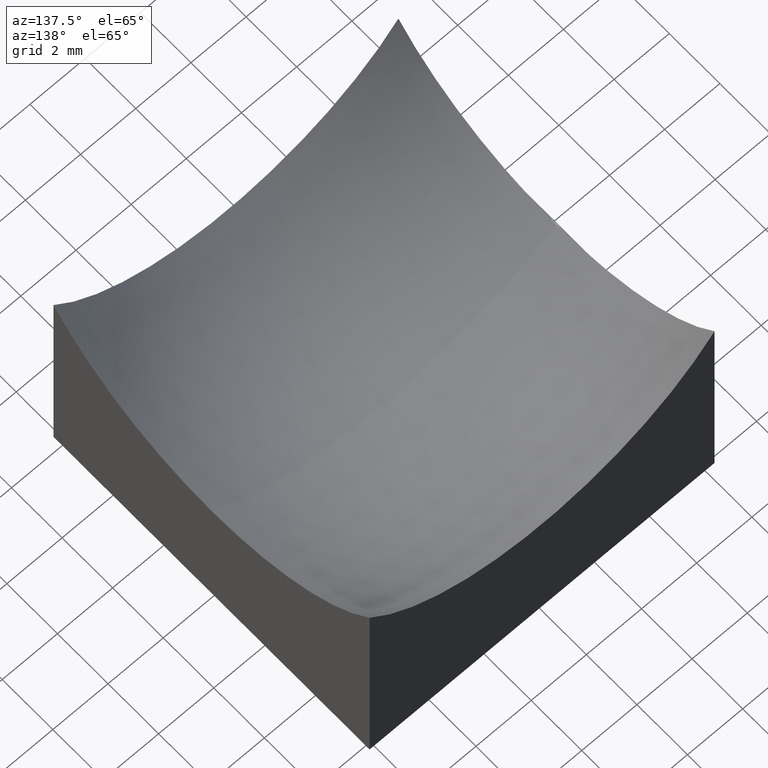
[diagram: clean part render]
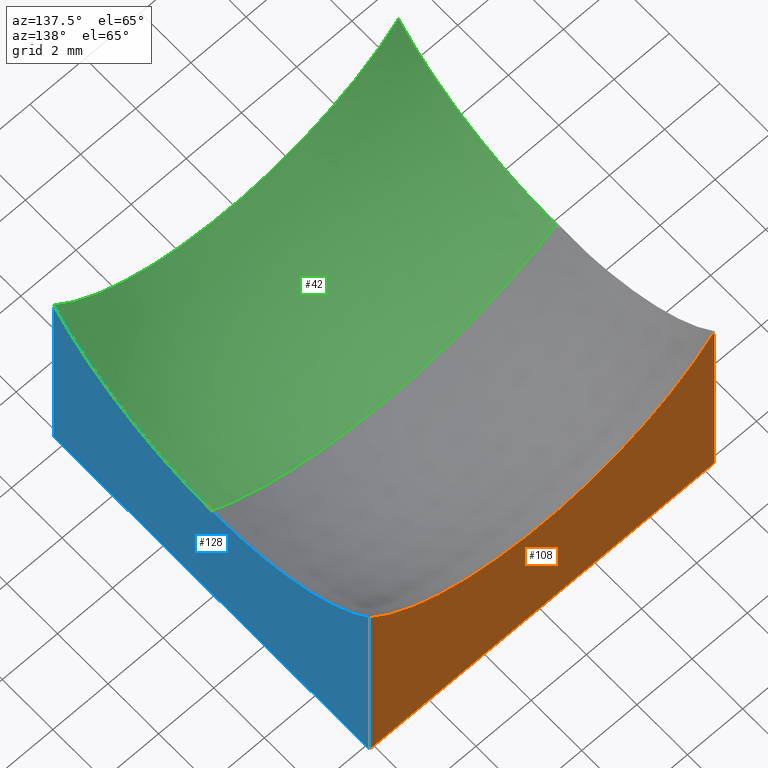
[diagram: same view with three faces highlighted in distinct colors, each labeled with its STEP entity id]
A machine part, auxiliary view with three faces highlighted in distinct colors.
Their STEP definitions:

[orange] entity #108 — the highlighted planar face has unit normal (0, 1, 0).
#5 = VERTEX_POINT ( 'NONE', #69 ) ;
#16 = LINE ( 'NONE', #56, #122 ) ;
#17 = DIRECTION ( 'NONE',  ( 0.0000000000000000000, 1.000000000000000000, 0.0000000000000000000 ) ) ;
#23 = VECTOR ( 'NONE', #41, 1000.000000000000000 ) ;
#31 = CARTESIAN_POINT ( 'NONE',  ( -6.250000000000000000, 6.250000000000000888, 10.00000000000000000 ) ) ;
#35 = CARTESIAN_POINT ( 'NONE',  ( -6.250000000000000000, 6.250000000000000888, 8.322928266532574781 ) ) ;
#36 = VERTEX_POINT ( 'NONE', #233 ) ;
#40 = DIRECTION ( 'NONE',  ( 1.000000000000000000, 0.0000000000000000000, 0.0000000000000000000 ) ) ;
#41 = DIRECTION ( 'NONE',  ( -0.0000000000000000000, -0.0000000000000000000, -1.000000000000000000 ) ) ;
#55 = ORIENTED_EDGE ( 'NONE', *, *, #217, .T. ) ;
#56 = CARTESIAN_POINT ( 'NONE',  ( -6.250000000000000000, 6.250000000000000888, 0.0000000000000000000 ) ) ;
#58 = EDGE_CURVE ( 'NONE', #5, #184, #16, .T. ) ;
#62 = FACE_OUTER_BOUND ( 'NONE', #101, .T. ) ;
#66 = CIRCLE ( 'NONE', #147, 7.806247497997999218 ) ;
#69 = CARTESIAN_POINT ( 'NONE',  ( -6.250000000000000000, 6.250000000000000888, 0.0000000000000000000 ) ) ;
#70 = CARTESIAN_POINT ( 'NONE',  ( 1.734723475976807094E-15, 6.250000000000000888, 13.00000000000000178 ) ) ;
#87 = VECTOR ( 'NONE', #89, 1000.000000000000000 ) ;
#89 = DIRECTION ( 'NONE',  ( -0.0000000000000000000, -0.0000000000000000000, -1.000000000000000000 ) ) ;
#92 = ORIENTED_EDGE ( 'NONE', *, *, #211, .F. ) ;
#101 = EDGE_LOOP ( 'NONE', ( #126, #55, #230, #92 ) ) ;
#106 = CARTESIAN_POINT ( 'NONE',  ( 6.250000000000000000, 6.250000000000000888, 0.0000000000000000000 ) ) ;
#108 = ADVANCED_FACE ( 'NONE', ( #62 ), #250, .T. ) ;
#122 = VECTOR ( 'NONE', #40, 1000.000000000000000 ) ;
#126 = ORIENTED_EDGE ( 'NONE', *, *, #196, .F. ) ;
#138 = DIRECTION ( 'NONE',  ( 0.0000000000000000000, -0.0000000000000000000, 1.000000000000000000 ) ) ;
#147 = AXIS2_PLACEMENT_3D ( 'NONE', #70, #168, #205 ) ;
#150 = CARTESIAN_POINT ( 'NONE',  ( -6.250000000000000000, 6.250000000000000888, 10.00000000000000000 ) ) ;
#152 = AXIS2_PLACEMENT_3D ( 'NONE', #150, #17, #138 ) ;
#155 = LINE ( 'NONE', #237, #23 ) ;
#168 = DIRECTION ( 'NONE',  ( 0.0000000000000000000, 1.000000000000000000, 0.0000000000000000000 ) ) ;
#184 = VERTEX_POINT ( 'NONE', #106 ) ;
#196 = EDGE_CURVE ( 'NONE', #36, #198, #66, .T. ) ;
#198 = VERTEX_POINT ( 'NONE', #35 ) ;
#205 = DIRECTION ( 'NONE',  ( 0.0000000000000000000, 0.0000000000000000000, 1.000000000000000000 ) ) ;
#211 = EDGE_CURVE ( 'NONE', #198, #5, #225, .T. ) ;
#217 = EDGE_CURVE ( 'NONE', #36, #184, #155, .T. ) ;
#225 = LINE ( 'NONE', #31, #87 ) ;
#230 = ORIENTED_EDGE ( 'NONE', *, *, #58, .F. ) ;
#233 = CARTESIAN_POINT ( 'NONE',  ( 6.250000000000000000, 6.250000000000000888, 8.322928266532569452 ) ) ;
#237 = CARTESIAN_POINT ( 'NONE',  ( 6.250000000000000000, 6.250000000000000888, 10.00000000000000000 ) ) ;
#250 = PLANE ( 'NONE',  #152 ) ;

[blue] entity #128 — the highlighted planar face has unit normal (1, 0, -0).
#6 = DIRECTION ( 'NONE',  ( 1.000000000000000000, 0.0000000000000000000, -0.0000000000000000000 ) ) ;
#8 = ORIENTED_EDGE ( 'NONE', *, *, #14, .T. ) ;
#13 = ORIENTED_EDGE ( 'NONE', *, *, #63, .F. ) ;
#14 = EDGE_CURVE ( 'NONE', #88, #109, #224, .T. ) ;
#15 = DIRECTION ( 'NONE',  ( -0.0000000000000000000, 0.0000000000000000000, -1.000000000000000000 ) ) ;
#23 = VECTOR ( 'NONE', #41, 1000.000000000000000 ) ;
#24 = ORIENTED_EDGE ( 'NONE', *, *, #68, .F. ) ;
#26 = AXIS2_PLACEMENT_3D ( 'NONE', #174, #212, #15 ) ;
#29 = CARTESIAN_POINT ( 'NONE',  ( 6.250000000000000000, 0.0000000000000000000, 13.00000000000000178 ) ) ;
#33 = ORIENTED_EDGE ( 'NONE', *, *, #208, .F. ) ;
#36 = VERTEX_POINT ( 'NONE', #233 ) ;
#37 = CARTESIAN_POINT ( 'NONE',  ( 6.250000000000000000, 0.0000000000000000000, 5.193752502001999893 ) ) ;
#38 = DIRECTION ( 'NONE',  ( 0.0000000000000000000, -1.000000000000000000, 0.0000000000000000000 ) ) ;
#39 = CARTESIAN_POINT ( 'NONE',  ( 6.250000000000000000, 6.250000000000000888, 0.0000000000000000000 ) ) ;
#41 = DIRECTION ( 'NONE',  ( -0.0000000000000000000, -0.0000000000000000000, -1.000000000000000000 ) ) ;
#57 = VECTOR ( 'NONE', #38, 1000.000000000000000 ) ;
#61 = DIRECTION ( 'NONE',  ( 1.000000000000000000, 0.0000000000000000000, -0.0000000000000000000 ) ) ;
#63 = EDGE_CURVE ( 'NONE', #184, #109, #213, .T. ) ;
#68 = EDGE_CURVE ( 'NONE', #204, #36, #81, .T. ) ;
#73 = CARTESIAN_POINT ( 'NONE',  ( 6.250000000000000000, -6.250000000000000888, 8.322928266532569452 ) ) ;
#77 = CARTESIAN_POINT ( 'NONE',  ( 6.250000000000000000, -6.250000000000000888, 0.0000000000000000000 ) ) ;
#81 = CIRCLE ( 'NONE', #188, 7.806247497998001883 ) ;
#88 = VERTEX_POINT ( 'NONE', #73 ) ;
#100 = AXIS2_PLACEMENT_3D ( 'NONE', #29, #6, #242 ) ;
#106 = CARTESIAN_POINT ( 'NONE',  ( 6.250000000000000000, 6.250000000000000888, 0.0000000000000000000 ) ) ;
#109 = VERTEX_POINT ( 'NONE', #77 ) ;
#128 = ADVANCED_FACE ( 'NONE', ( #248 ), #231, .T. ) ;
#155 = LINE ( 'NONE', #237, #23 ) ;
#157 = CIRCLE ( 'NONE', #100, 7.806247497998001883 ) ;
#167 = CARTESIAN_POINT ( 'NONE',  ( 6.250000000000000000, -6.250000000000000888, 10.00000000000000000 ) ) ;
#174 = CARTESIAN_POINT ( 'NONE',  ( 6.250000000000000000, 6.250000000000000888, 10.00000000000000000 ) ) ;
#184 = VERTEX_POINT ( 'NONE', #106 ) ;
#188 = AXIS2_PLACEMENT_3D ( 'NONE', #235, #61, #214 ) ;
#203 = DIRECTION ( 'NONE',  ( -0.0000000000000000000, -0.0000000000000000000, -1.000000000000000000 ) ) ;
#204 = VERTEX_POINT ( 'NONE', #37 ) ;
#208 = EDGE_CURVE ( 'NONE', #88, #204, #157, .T. ) ;
#209 = VECTOR ( 'NONE', #203, 1000.000000000000000 ) ;
#212 = DIRECTION ( 'NONE',  ( 1.000000000000000000, 0.0000000000000000000, -0.0000000000000000000 ) ) ;
#213 = LINE ( 'NONE', #39, #57 ) ;
#214 = DIRECTION ( 'NONE',  ( 0.0000000000000000000, 0.0000000000000000000, -1.000000000000000000 ) ) ;
#217 = EDGE_CURVE ( 'NONE', #36, #184, #155, .T. ) ;
#218 = EDGE_LOOP ( 'NONE', ( #33, #8, #13, #226, #24 ) ) ;
#224 = LINE ( 'NONE', #167, #209 ) ;
#226 = ORIENTED_EDGE ( 'NONE', *, *, #217, .F. ) ;
#231 = PLANE ( 'NONE',  #26 ) ;
#233 = CARTESIAN_POINT ( 'NONE',  ( 6.250000000000000000, 6.250000000000000888, 8.322928266532569452 ) ) ;
#235 = CARTESIAN_POINT ( 'NONE',  ( 6.250000000000000000, 0.0000000000000000000, 13.00000000000000178 ) ) ;
#237 = CARTESIAN_POINT ( 'NONE',  ( 6.250000000000000000, 6.250000000000000888, 10.00000000000000000 ) ) ;
#242 = DIRECTION ( 'NONE',  ( 0.0000000000000000000, 0.0000000000000000000, -1.000000000000000000 ) ) ;
#248 = FACE_OUTER_BOUND ( 'NONE', #218, .T. ) ;

[green] entity #42 — the highlighted spherical surface has radius 10 mm.
#6 = DIRECTION ( 'NONE',  ( 1.000000000000000000, 0.0000000000000000000, -0.0000000000000000000 ) ) ;
#10 = CARTESIAN_POINT ( 'NONE',  ( 1.734723475976807094E-15, 0.0000000000000000000, 13.00000000000000178 ) ) ;
#18 = DIRECTION ( 'NONE',  ( 0.0000000000000000000, 1.000000000000000000, 0.0000000000000000000 ) ) ;
#19 = DIRECTION ( 'NONE',  ( 1.000000000000000000, 0.0000000000000000000, 0.0000000000000000000 ) ) ;
#29 = CARTESIAN_POINT ( 'NONE',  ( 6.250000000000000000, 0.0000000000000000000, 13.00000000000000178 ) ) ;
#32 = CIRCLE ( 'NONE', #120, 7.806247497997999218 ) ;
#34 = VERTEX_POINT ( 'NONE', #177 ) ;
#37 = CARTESIAN_POINT ( 'NONE',  ( 6.250000000000000000, 0.0000000000000000000, 5.193752502001999893 ) ) ;
#42 = ADVANCED_FACE ( 'NONE', ( #135 ), #59, .F. ) ;
#44 = AXIS2_PLACEMENT_3D ( 'NONE', #148, #194, #162 ) ;
#49 = VERTEX_POINT ( 'NONE', #210 ) ;
#59 = SPHERICAL_SURFACE ( 'NONE', #240, 10.00000000000000178 ) ;
#73 = CARTESIAN_POINT ( 'NONE',  ( 6.250000000000000000, -6.250000000000000888, 8.322928266532569452 ) ) ;
#74 = DIRECTION ( 'NONE',  ( 0.0000000000000000000, 0.0000000000000000000, 1.000000000000000000 ) ) ;
#78 = CARTESIAN_POINT ( 'NONE',  ( 1.734723475976807094E-15, -6.250000000000000888, 13.00000000000000178 ) ) ;
#83 = EDGE_CURVE ( 'NONE', #88, #34, #32, .T. ) ;
#85 = DIRECTION ( 'NONE',  ( 0.0000000000000000000, 0.0000000000000000000, -1.000000000000000000 ) ) ;
#88 = VERTEX_POINT ( 'NONE', #73 ) ;
#99 = DIRECTION ( 'NONE',  ( -0.0000000000000000000, 1.000000000000000000, 0.0000000000000000000 ) ) ;
#100 = AXIS2_PLACEMENT_3D ( 'NONE', #29, #6, #242 ) ;
#104 = EDGE_CURVE ( 'NONE', #49, #207, #131, .T. ) ;
#111 = ORIENTED_EDGE ( 'NONE', *, *, #185, .F. ) ;
#118 = CARTESIAN_POINT ( 'NONE',  ( 1.734723475976807094E-15, 0.0000000000000000000, 13.00000000000000178 ) ) ;
#120 = AXIS2_PLACEMENT_3D ( 'NONE', #78, #18, #74 ) ;
#121 = ORIENTED_EDGE ( 'NONE', *, *, #134, .F. ) ;
#127 = DIRECTION ( 'NONE',  ( 0.0000000000000000000, -1.000000000000000000, 0.0000000000000000000 ) ) ;
#129 = ORIENTED_EDGE ( 'NONE', *, *, #104, .T. ) ;
#131 = CIRCLE ( 'NONE', #139, 10.00000000000000178 ) ;
#134 = EDGE_CURVE ( 'NONE', #49, #204, #170, .T. ) ;
#135 = FACE_OUTER_BOUND ( 'NONE', #227, .T. ) ;
#136 = DIRECTION ( 'NONE',  ( 1.224646799147353207E-16, 1.000000000000000000, 9.649496739354411937E-33 ) ) ;
#139 = AXIS2_PLACEMENT_3D ( 'NONE', #154, #136, #236 ) ;
#148 = CARTESIAN_POINT ( 'NONE',  ( -6.250000000000000000, 0.0000000000000000000, 13.00000000000000178 ) ) ;
#149 = ORIENTED_EDGE ( 'NONE', *, *, #208, .T. ) ;
#154 = CARTESIAN_POINT ( 'NONE',  ( 1.734723475976807094E-15, 0.0000000000000000000, 13.00000000000000178 ) ) ;
#157 = CIRCLE ( 'NONE', #100, 7.806247497998001883 ) ;
#162 = DIRECTION ( 'NONE',  ( 0.0000000000000000000, 0.0000000000000000000, -1.000000000000000000 ) ) ;
#170 = CIRCLE ( 'NONE', #176, 10.00000000000000178 ) ;
#176 = AXIS2_PLACEMENT_3D ( 'NONE', #10, #127, #85 ) ;
#177 = CARTESIAN_POINT ( 'NONE',  ( -6.250000000000000000, -6.250000000000000888, 8.322928266532574781 ) ) ;
#180 = ORIENTED_EDGE ( 'NONE', *, *, #83, .F. ) ;
#185 = EDGE_CURVE ( 'NONE', #34, #207, #228, .T. ) ;
#194 = DIRECTION ( 'NONE',  ( 1.000000000000000000, 0.0000000000000000000, -0.0000000000000000000 ) ) ;
#204 = VERTEX_POINT ( 'NONE', #37 ) ;
#207 = VERTEX_POINT ( 'NONE', #247 ) ;
#208 = EDGE_CURVE ( 'NONE', #88, #204, #157, .T. ) ;
#210 = CARTESIAN_POINT ( 'NONE',  ( 3.134988079991859781E-15, 0.0000000000000000000, 2.999999999999999112 ) ) ;
#227 = EDGE_LOOP ( 'NONE', ( #121, #129, #111, #180, #149 ) ) ;
#228 = CIRCLE ( 'NONE', #44, 7.806247497997999218 ) ;
#236 = DIRECTION ( 'NONE',  ( -1.000000000000000000, 1.224646799147353207E-16, 0.0000000000000000000 ) ) ;
#240 = AXIS2_PLACEMENT_3D ( 'NONE', #118, #99, #19 ) ;
#242 = DIRECTION ( 'NONE',  ( 0.0000000000000000000, 0.0000000000000000000, -1.000000000000000000 ) ) ;
#247 = CARTESIAN_POINT ( 'NONE',  ( -6.250000000000000000, 7.654042494670960565E-16, 5.193752502002001670 ) ) ;